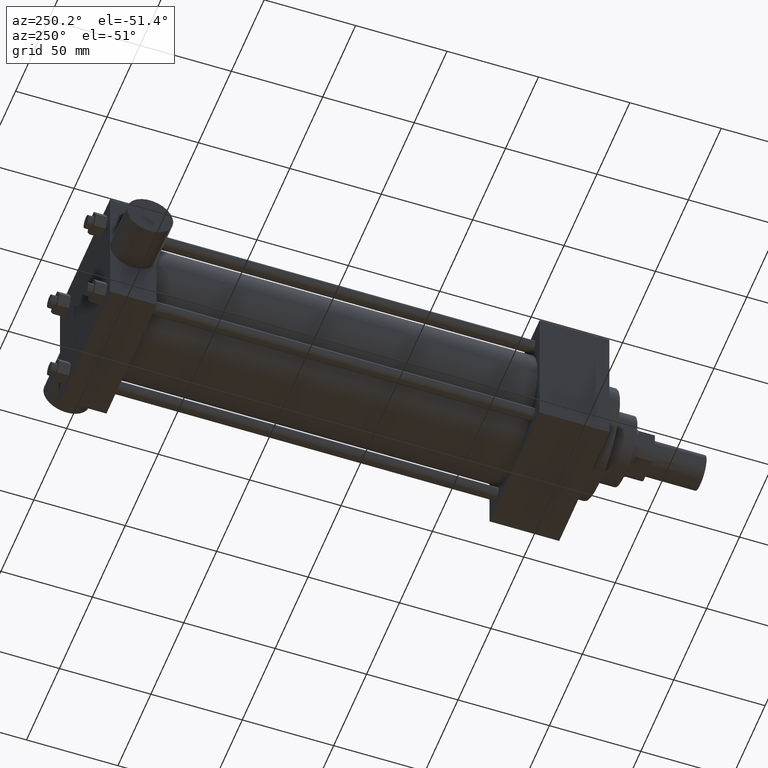
[diagram: clean part render]
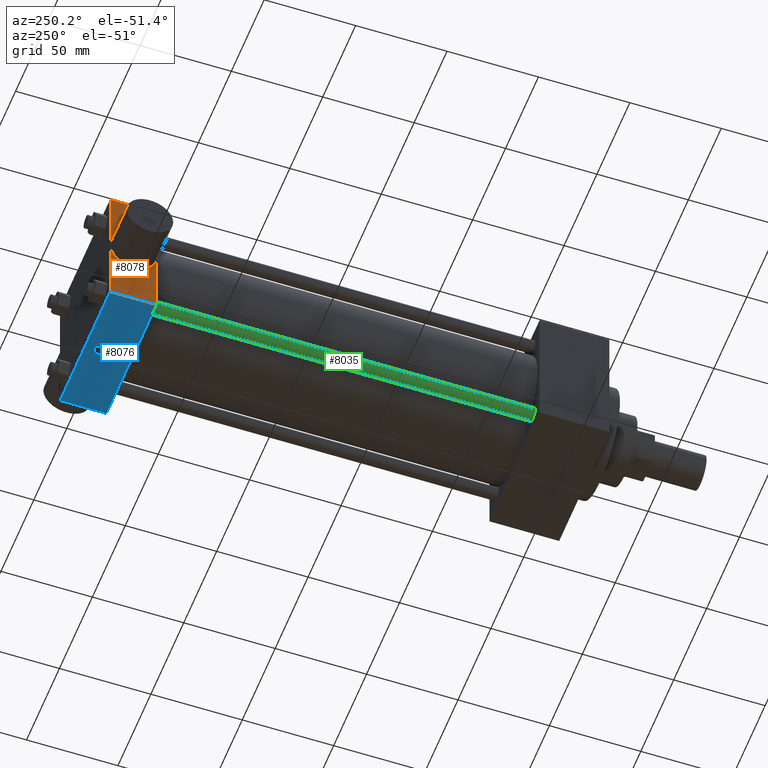
[diagram: same view with three faces highlighted in distinct colors, each labeled with its STEP entity id]
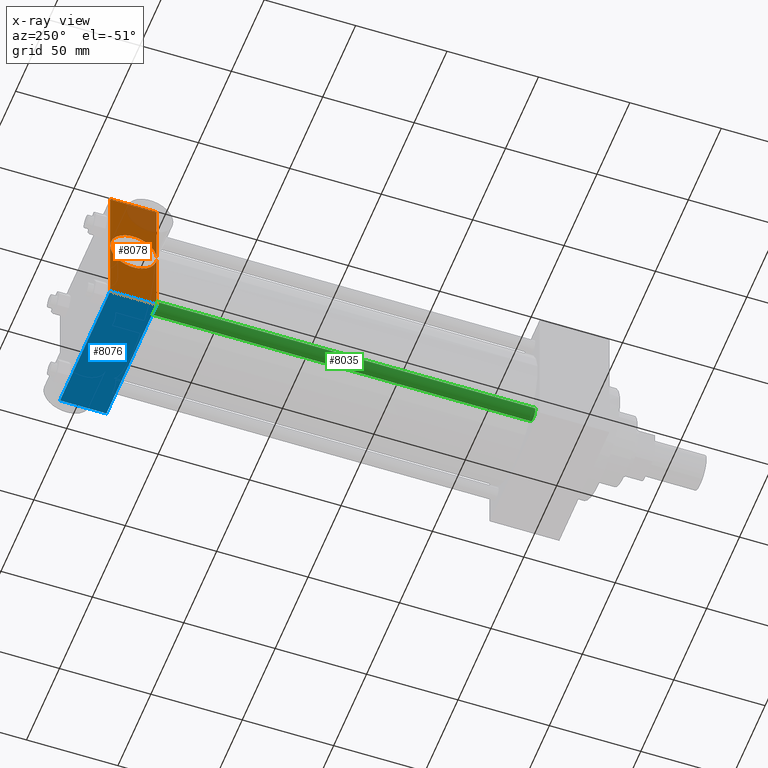
[diagram: x-ray of the same camera — body ghosted, the three highlighted faces saturated]
A machine part, auxiliary view with three faces highlighted in distinct colors.
The next image is the same camera in x-ray (body ghosted, the three faces saturated) — at least one of them is partly hidden behind the body in this view.
Their STEP definitions:

[orange] entity #8078 — the highlighted planar face has unit normal (-1, 0, 0).
#2526=VERTEX_POINT('',#2528);
#2528=CARTESIAN_POINT('',(-3.810000000E+001,3.079750000E+002,-3.810000000E+001));
#2530=EDGE_CURVE('',#2535,#2526,#2531,.T.);
#2531=LINE('',#2532,#2533);
#2532=CARTESIAN_POINT('',(-3.810000000E+001,3.079750000E+002,3.810000000E+001));
#2533=VECTOR('',#2534,1.0E+000);
#2534=DIRECTION('',(0.0E+000,0.0E+000,-1.0E+000));
#2535=VERTEX_POINT('',#2536);
#2536=CARTESIAN_POINT('',(-3.810000000E+001,3.079750000E+002,3.810000000E+001));
#2699=VERTEX_POINT('',#2701);
#2701=CARTESIAN_POINT('',(-3.810000000E+001,2.825750000E+002,-3.810000000E+001));
#2715=VERTEX_POINT('',#2716);
#2716=CARTESIAN_POINT('',(-3.810000000E+001,2.825750000E+002,3.810000000E+001));
#2717=EDGE_CURVE('',#2715,#2699,#2718,.T.);
#2718=LINE('',#2719,#2720);
#2719=CARTESIAN_POINT('',(-3.810000000E+001,2.825750000E+002,3.810000000E+001));
#2720=VECTOR('',#2721,1.0E+000);
#2721=DIRECTION('',(0.0E+000,0.0E+000,-1.0E+000));
#2744=EDGE_CURVE('',#2526,#2699,#2745,.T.);
#2745=LINE('',#2746,#2747);
#2746=CARTESIAN_POINT('',(-3.810000000E+001,3.079750000E+002,-3.810000000E+001));
#2747=VECTOR('',#2748,1.0E+000);
#2748=DIRECTION('',(0.0E+000,-1.0E+000,0.0E+000));
#2781=EDGE_CURVE('',#2535,#2715,#2782,.T.);
#2782=LINE('',#2783,#2784);
#2783=CARTESIAN_POINT('',(-3.810000000E+001,3.079750000E+002,3.810000000E+001));
#2784=VECTOR('',#2785,1.0E+000);
#2785=DIRECTION('',(0.0E+000,-1.0E+000,0.0E+000));
#2800=FACE_OUTER_BOUND('',#2802,.T.);
#2801=FACE_BOUND('',#2803,.T.);
#2802=EDGE_LOOP('',(#2804,#2805,#2806,#2807));
#2803=EDGE_LOOP('',(#2808));
#2804=ORIENTED_EDGE('',*,*,#2717,.F.);
#2805=ORIENTED_EDGE('',*,*,#2781,.F.);
#2806=ORIENTED_EDGE('',*,*,#2530,.T.);
#2807=ORIENTED_EDGE('',*,*,#2744,.T.);
#2808=ORIENTED_EDGE('',*,*,#2809,.T.);
#2809=EDGE_CURVE('',#2815,#2815,#2810,.T.);
#2810=CIRCLE('',#2811,1.267460000E+001);
#2811=AXIS2_PLACEMENT_3D('',#2812,#2813,#2814);
#2812=CARTESIAN_POINT('',(-3.810000000E+001,2.952750000E+002,0.000000000E+000));
#2813=DIRECTION('',(1.0E+000,0.0E+000,0.0E+000));
#2814=DIRECTION('',(0.0E+000,-1.0E+000,0.0E+000));
#2815=VERTEX_POINT('',#2816);
#2816=CARTESIAN_POINT('',(-3.810000000E+001,2.826004000E+002,0.000000000E+000));
#2817=PLANE('',#2818);
#2818=AXIS2_PLACEMENT_3D('',#2819,#2820,#2821);
#2819=CARTESIAN_POINT('',(-3.810000000E+001,3.079750000E+002,3.810000000E+001));
#2820=DIRECTION('',(-1.0E+000,0.0E+000,0.0E+000));
#2821=DIRECTION('',(0.0E+000,0.0E+000,1.0E+000));
#8078=ADVANCED_FACE('',(#2800,#2801),#2817,.T.);

[blue] entity #8076 — the highlighted planar face has unit normal (0, 0, -1).
#2521=EDGE_CURVE('',#2526,#2527,#2522,.T.);
#2522=LINE('',#2523,#2524);
#2523=CARTESIAN_POINT('',(-3.810000000E+001,3.079750000E+002,-3.810000000E+001));
#2524=VECTOR('',#2525,1.0E+000);
#2525=DIRECTION('',(1.0E+000,0.0E+000,0.0E+000));
#2526=VERTEX_POINT('',#2528);
#2527=VERTEX_POINT('',#2529);
#2528=CARTESIAN_POINT('',(-3.810000000E+001,3.079750000E+002,-3.810000000E+001));
#2529=CARTESIAN_POINT('',(3.810000000E+001,3.079750000E+002,-3.810000000E+001));
#2694=EDGE_CURVE('',#2699,#2700,#2695,.T.);
#2695=LINE('',#2696,#2697);
#2696=CARTESIAN_POINT('',(-3.810000000E+001,2.825750000E+002,-3.810000000E+001));
#2697=VECTOR('',#2698,1.0E+000);
#2698=DIRECTION('',(1.0E+000,0.0E+000,0.0E+000));
#2699=VERTEX_POINT('',#2701);
#2700=VERTEX_POINT('',#2702);
#2701=CARTESIAN_POINT('',(-3.810000000E+001,2.825750000E+002,-3.810000000E+001));
#2702=CARTESIAN_POINT('',(3.810000000E+001,2.825750000E+002,-3.810000000E+001));
#2736=FACE_OUTER_BOUND('',#2738,.T.);
#2737=FACE_BOUND('',#2739,.T.);
#2738=EDGE_LOOP('',(#2740,#2741,#2742,#2743));
#2739=EDGE_LOOP('',(#2754));
#2740=ORIENTED_EDGE('',*,*,#2694,.F.);
#2741=ORIENTED_EDGE('',*,*,#2744,.F.);
#2742=ORIENTED_EDGE('',*,*,#2521,.T.);
#2743=ORIENTED_EDGE('',*,*,#2749,.T.);
#2744=EDGE_CURVE('',#2526,#2699,#2745,.T.);
#2745=LINE('',#2746,#2747);
#2746=CARTESIAN_POINT('',(-3.810000000E+001,3.079750000E+002,-3.810000000E+001));
#2747=VECTOR('',#2748,1.0E+000);
#2748=DIRECTION('',(0.0E+000,-1.0E+000,0.0E+000));
#2749=EDGE_CURVE('',#2527,#2700,#2750,.T.);
#2750=LINE('',#2751,#2752);
#2751=CARTESIAN_POINT('',(3.810000000E+001,3.079750000E+002,-3.810000000E+001));
#2752=VECTOR('',#2753,1.0E+000);
#2753=DIRECTION('',(0.0E+000,-1.0E+000,0.0E+000));
#2754=ORIENTED_EDGE('',*,*,#2755,.T.);
#2755=EDGE_CURVE('',#2761,#2761,#2756,.T.);
#2756=CIRCLE('',#2757,2.778125000E+000);
#2757=AXIS2_PLACEMENT_3D('',#2758,#2759,#2760);
#2758=CARTESIAN_POINT('',(0.000000000E+000,3.000375000E+002,-3.810000000E+001));
#2759=DIRECTION('',(0.0E+000,0.0E+000,1.0E+000));
#2760=DIRECTION('',(1.0E+000,0.0E+000,0.0E+000));
#2761=VERTEX_POINT('',#2762);
#2762=CARTESIAN_POINT('',(2.778125000E+000,3.000375000E+002,-3.810000000E+001));
#2763=PLANE('',#2764);
#2764=AXIS2_PLACEMENT_3D('',#2765,#2766,#2767);
#2765=CARTESIAN_POINT('',(-3.810000000E+001,3.079750000E+002,-3.810000000E+001));
#2766=DIRECTION('',(0.0E+000,0.0E+000,-1.0E+000));
#2767=DIRECTION('',(-1.0E+000,0.0E+000,0.0E+000));
#8076=ADVANCED_FACE('',(#2736,#2737),#2763,.T.);

[green] entity #8035 — the highlighted cylindrical surface (bore or boss wall) has radius 3.5687 mm, axis along (0, -1, 0).
#529=EDGE_CURVE('',#535,#535,#530,.T.);
#530=CIRCLE('',#531,3.568700000E+000);
#531=AXIS2_PLACEMENT_3D('',#532,#533,#534);
#532=CARTESIAN_POINT('',(-2.781300000E+001,7.302500000E+001,-2.781300000E+001));
#533=DIRECTION('',(0.0E+000,1.0E+000,0.0E+000));
#534=DIRECTION('',(1.0E+000,0.0E+000,0.0E+000));
#535=VERTEX_POINT('',#536);
#536=CARTESIAN_POINT('',(-2.424430000E+001,7.302500000E+001,-2.781300000E+001));
#1390=FACE_OUTER_BOUND('',#1392,.T.);
#1391=FACE_BOUND('',#1393,.T.);
#1392=EDGE_LOOP('',(#1394));
#1393=EDGE_LOOP('',(#1395));
#1394=ORIENTED_EDGE('',*,*,#1439,.F.);
#1395=ORIENTED_EDGE('',*,*,#529,.T.);
#1396=CYLINDRICAL_SURFACE('',#1397,3.568700000E+000);
#1397=AXIS2_PLACEMENT_3D('',#1398,#1399,#1400);
#1398=CARTESIAN_POINT('',(-2.781300000E+001,2.825750000E+002,-2.781300000E+001));
#1399=DIRECTION('',(0.0E+000,-1.0E+000,0.0E+000));
#1400=DIRECTION('',(0.0E+000,0.0E+000,-1.0E+000));
#1439=EDGE_CURVE('',#1445,#1445,#1440,.T.);
#1440=CIRCLE('',#1441,3.568700000E+000);
#1441=AXIS2_PLACEMENT_3D('',#1442,#1443,#1444);
#1442=CARTESIAN_POINT('',(-2.781300000E+001,2.825750000E+002,-2.781300000E+001));
#1443=DIRECTION('',(0.0E+000,1.0E+000,0.0E+000));
#1444=DIRECTION('',(1.0E+000,0.0E+000,0.0E+000));
#1445=VERTEX_POINT('',#1446);
#1446=CARTESIAN_POINT('',(-2.424430000E+001,2.825750000E+002,-2.781300000E+001));
#8035=ADVANCED_FACE('',(#1390,#1391),#1396,.T.);